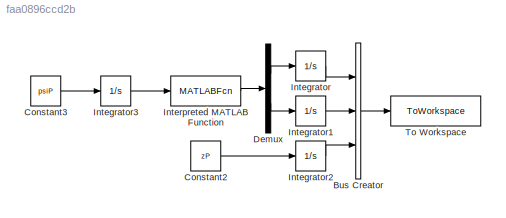
MODEL slx_faa0896ccd2b
KIND model
CONFIG AbsTol = auto
CONFIG EnableMultiTasking = off
CONFIG FixedStep = auto
CONFIG MaxStep = auto
CONFIG MinStep = auto
CONFIG RelTol = 1e-3
CONFIG SampleTimeConstraint = Unconstrained
CONFIG SolverName = VariableStepAuto
CONFIG StartTime = 0.0
CONFIG StopTime = 10.0
BLOCK [BusCreator] Bus Creator
  DisplayOption = bar
  InheritFromInputs = on
  Inputs = 3
  Ports = [3, 1]
BLOCK [Constant] Constant2
  Value = zP
BLOCK [Constant] Constant3
  Value = psiP
BLOCK [Demux] Demux
  Outputs = 2
  Ports = [1, 2]
BLOCK [Integrator] Integrator
  Ports = [1, 1]
BLOCK [Integrator] Integrator1
  Ports = [1, 1]
BLOCK [Integrator] Integrator2
  Ports = [1, 1]
BLOCK [Integrator] Integrator3
  Ports = [1, 1]
BLOCK [MATLABFcn] Interpreted MATLAB Function
  MATLABFcn = Kinematics
  OutputDimensions = 2
  OutputSignalType = real
  Ports = [1, 1]
BLOCK [ToWorkspace] To Workspace
  FixptAsFi = on
  MaxDataPoints = inf
  Ports = [1]
  SampleTime = -1
  SaveFormat = Timeseries
  VariableName = Results
LINE Bus Creator:1 -> To Workspace:1
LINE Constant2:1 -> Integrator2:1
LINE Constant3:1 -> Integrator3:1
LINE Demux:1 -> Integrator:1
LINE Demux:2 -> Integrator1:1
LINE Integrator1:1 -> Bus Creator:2
LINE Integrator2:1 -> Bus Creator:3
LINE Integrator3:1 -> Interpreted MATLAB Function:1
LINE Integrator:1 -> Bus Creator:1
LINE Interpreted MATLAB Function:1 -> Demux:1
